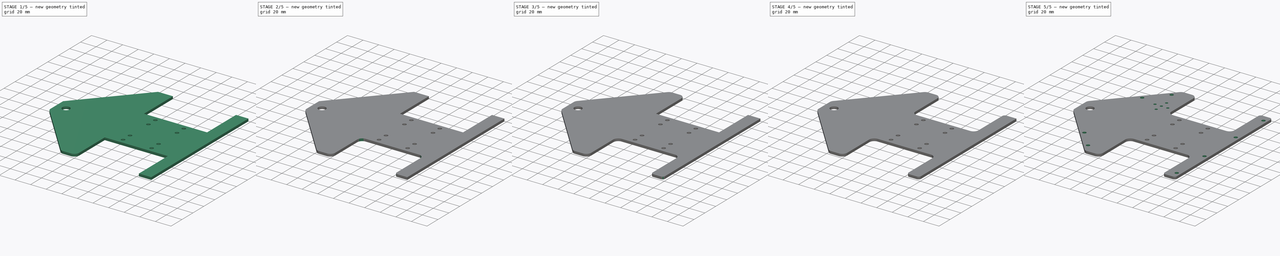
[diagram: build sequence overview — one tinted view per stage of 5, left to right]
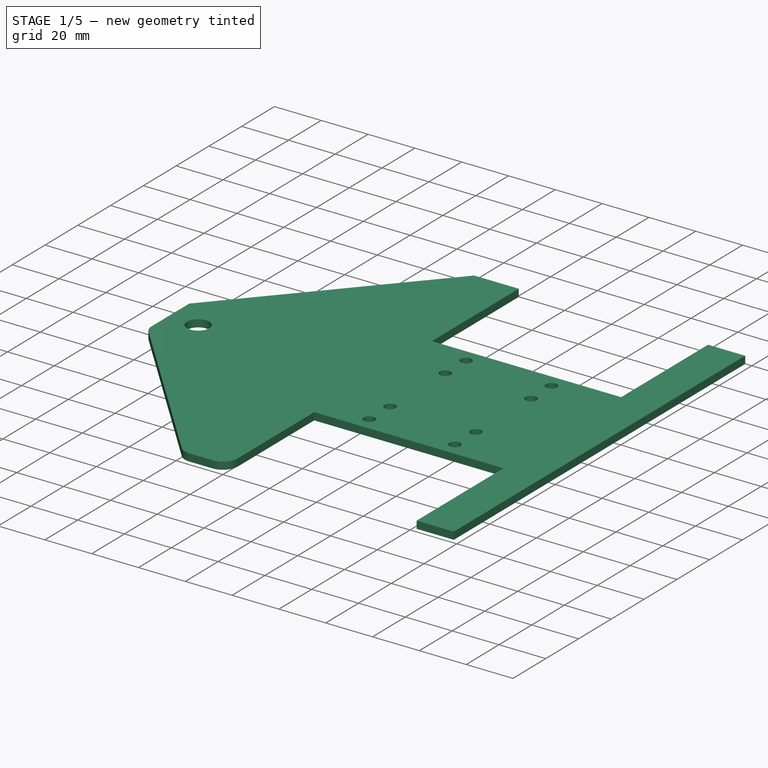
[diagram: stage 1 of 5 — iso view after this stage's code; geometry added in this stage tinted green]
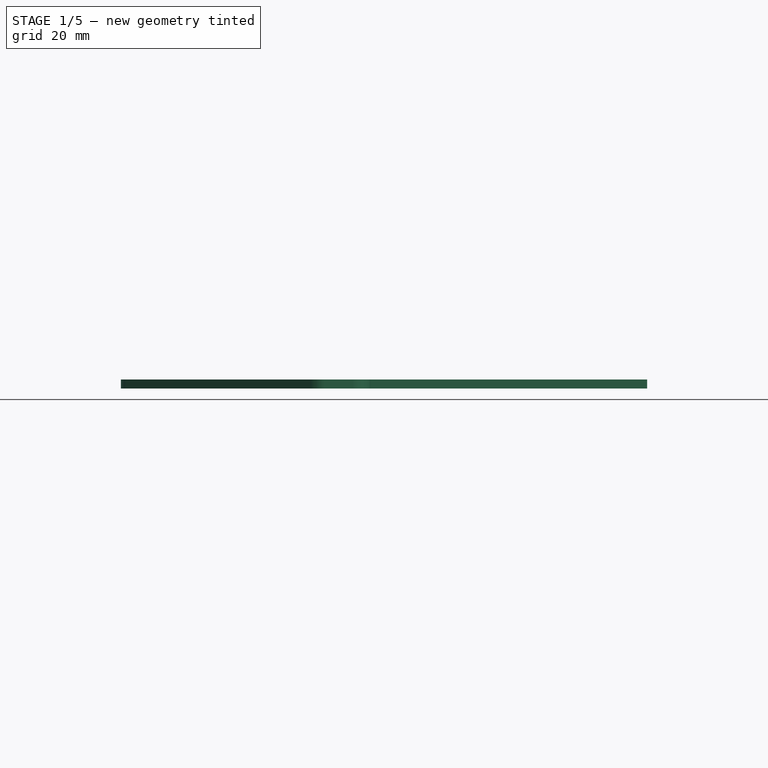
[diagram: stage 1 of 5 — front view after this stage's code; geometry added in this stage tinted green]
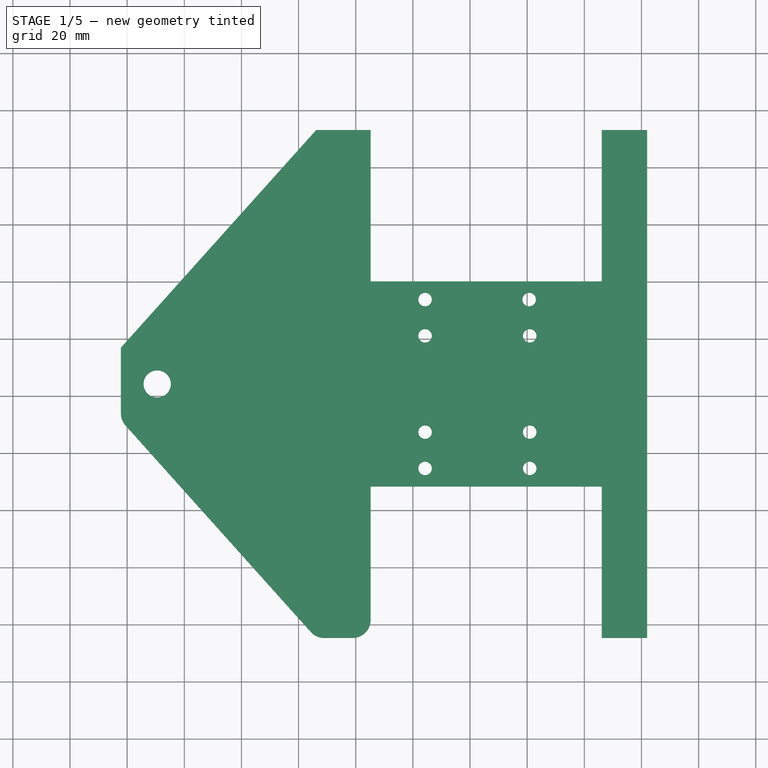
[diagram: stage 1 of 5 — top view after this stage's code; geometry added in this stage tinted green]
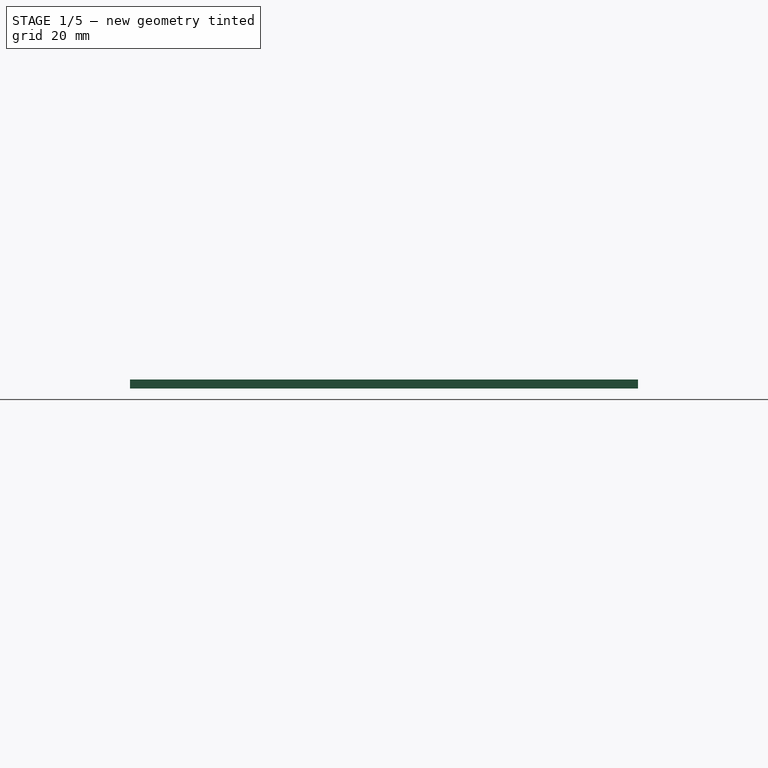
[diagram: stage 1 of 5 — right view after this stage's code; geometry added in this stage tinted green]
FCSTD DOCUMENT  (FreeCAD 0.15R4671 (Git))
Label: plate
License: All rights reserved
LicenseURL: http://en.wikipedia.org/wiki/All_rights_reserved
objects: PartDesign::Fillet×14, Sketcher::SketchObject×4, PartDesign::Pocket×3, App::DocumentObjectGroup×1, PartDesign::Pad×1
note: 26 computed .brp shape members not serialized (recipe doc carries the construction recipe); baked Part::Feature solids carry a one-line shape summary decoded from their .brp

FEATURE [App::DocumentObjectGroup] Group  label="plate"
FEATURE [Sketcher::SketchObject] Sketch  label="main"
  Placement = pos=(-14.3421,44.2432,43.6758) rot=(0,0,1;0rad)
  sketch-geometry (25):
    g0: LineSegment StartX=40.4368 StartY=35.9029 StartZ=0 EndX=-40.4368 EndY=35.9029 EndZ=0
    g1: LineSegment StartX=-40.4368 StartY=35.9029 StartZ=0 EndX=-40.4368 EndY=88.9 EndZ=0
    g2: LineSegment StartX=-40.4368 StartY=88.9 StartZ=0 EndX=-59.4868 EndY=88.9 EndZ=0
    g3: LineSegment StartX=-59.4868 StartY=88.9 StartZ=0 EndX=-127.838 EndY=12.7 EndZ=0
    g4: LineSegment StartX=-127.838 StartY=12.7 StartZ=0 EndX=-127.838 EndY=-12.7 EndZ=0
    g5: LineSegment StartX=-127.838 StartY=-12.7 StartZ=0 EndX=-59.4868 EndY=-88.9 EndZ=0
    g6: LineSegment StartX=-59.4868 StartY=-88.9 StartZ=0 EndX=-40.4368 EndY=-88.9 EndZ=0
    g7: LineSegment StartX=-40.4368 StartY=-88.9 StartZ=0 EndX=-40.4368 EndY=-35.9029 EndZ=0
    g8: LineSegment StartX=-40.4368 StartY=-35.9029 StartZ=0 EndX=40.4368 EndY=-35.9029 EndZ=0
    g9: LineSegment StartX=40.4368 StartY=-35.9029 StartZ=0 EndX=40.4368 EndY=-88.9 EndZ=0
    g10: LineSegment StartX=40.4368 StartY=-88.9 StartZ=0 EndX=56.3118 EndY=-88.9 EndZ=0
    g11: LineSegment StartX=56.3118 StartY=-88.9 StartZ=0 EndX=56.3118 EndY=88.9 EndZ=0
    g12: LineSegment StartX=56.3118 StartY=88.9 StartZ=0 EndX=40.4368 EndY=88.9 EndZ=0
    g13: LineSegment StartX=40.4368 StartY=88.9 StartZ=0 EndX=40.4368 EndY=35.9029 EndZ=0
    g14: Circle CenterX=-21.3868 CenterY=29.5529 CenterZ=0 NormalX=0 NormalY=0 NormalZ=1 Radius=2.3622
    g15: Circle CenterX=-21.3868 CenterY=16.8529 CenterZ=0 NormalX=0 NormalY=0 NormalZ=1 Radius=2.3622
    g16: Circle CenterX=-21.3868 CenterY=-16.8529 CenterZ=0 NormalX=0 NormalY=0 NormalZ=1 Radius=2.3622
    g17: Circle CenterX=-21.3868 CenterY=-29.5529 CenterZ=0 NormalX=0 NormalY=0 NormalZ=1 Radius=2.3622
    g18: Circle CenterX=15.0368 CenterY=29.5529 CenterZ=0 NormalX=0 NormalY=0 NormalZ=1 Radius=2.3622
    g19: Circle CenterX=15.24 CenterY=16.8529 CenterZ=0 NormalX=0 NormalY=0 NormalZ=1 Radius=2.3622
    g20: Circle CenterX=15.24 CenterY=-16.8529 CenterZ=0 NormalX=0 NormalY=0 NormalZ=1 Radius=2.3622
    g21: Circle CenterX=15.24 CenterY=-29.5529 CenterZ=0 NormalX=0 NormalY=0 NormalZ=1 Radius=2.3622
    g22: Circle CenterX=-115.138 CenterY=0 CenterZ=0 NormalX=0 NormalY=0 NormalZ=1 Radius=4.7625
    g23: GeomPoint [constr] X=-127.838 Y=0 Z=0
    g24: LineSegment [constr] StartX=-127.838 StartY=0 StartZ=0 EndX=-115.138 EndY=0 EndZ=0
  constraints (71):
    c: Horizontal(g0)
    c: Coincident(g0,g1)
    c: Vertical(g1)
    c: Coincident(g1,g2)
    c: Horizontal(g2)
    c: Coincident(g2,g3)
    c: Coincident(g3,g4)
    c: Vertical(g4)
    c: Coincident(g4,g5)
    c: Coincident(g5,g6)
    c: Horizontal(g6)
    c: Coincident(g6,g7)
    c: Vertical(g7)
    c: Coincident(g7,g8)
    c: Horizontal(g8)
    c: Coincident(g8,g9)
    c: Vertical(g9)
    c: Coincident(g9,g10)
    c: Horizontal(g10)
    c: Coincident(g10,g11)
    c: Vertical(g11)
    c: Coincident(g11,g12)
    c: Horizontal(g12)
    c: Coincident(g12,g13)
    c: Coincident(g13,g0)
    c: Vertical(g13)
    c: Equal(g13,g9)
    c: Equal(g1,g7)
    c: Equal(g2,g6)
    c: Equal(g3,g5)
    c: Equal(g8,g0)
    c: Equal(g13,g1)
    c: DistanceX(g6) = 19.05
    c: DistanceY(g11) = 177.8
    c: DistanceX(g9,g10) = 15.875
    c: DistanceX(g4,g10) = 184.15
    c: Equal(g20,g19)
    c: Equal(g19,g18)
    c: Equal(g18,g21)
    c: Equal(g21,g17)
    c: Equal(g17,g16)
    c: Equal(g16,g15)
    c: Equal(g15,g14)
    c: Radius(g14) = 2.3622
    c: DistanceY(g4,g3) = 25.4
    c: Symmetric(g3,g4,g23)
    c: Horizontal(g24)
    c: DistanceX(g24) = 12.7
    c: Coincident(g24,g23)
    c: Radius(g22) = 4.7625
    c: Coincident(g22,g24)
    c: DistanceX(g18,g0) = 25.4
    c: DistanceY(g18,g19) = -12.7
    c: DistanceY(g21,g20) = 12.7
    c: DistanceY(g21,g8) = -6.35
    c: DistanceX(g14,g18) = 36.4236
    c: DistanceX(g15,g19) = 36.6268
    c: DistanceX(g16,g20) = 36.6268
    c: DistanceX(g17,g21) = 36.6268
    c: DistanceX(g14,g0) = -19.05
    c: DistanceX(g17,g7) = -19.05
    c: DistanceY(g17,g7) = -6.35
    c: DistanceY(g14,g0) = 6.35
    c: DistanceX(g15,g0) = -19.05
    c: DistanceX(g16,g0) = -19.05
    c: DistanceX(g17,g0) = -19.05
    c: DistanceY(g0,g7) = -71.8058
    c: DistanceY(g15,g14) = 12.7
    c: Symmetric(g0,g7,g-1)
    c: DistanceY(g16,g17) = -12.7
    c: DistanceY(g18,g0) = 6.35
FEATURE [PartDesign::Pad] Pad
  Length = 3.175
  Length2 = 100
  Placement = pos=(-14.3421,44.2432,43.6758) rot=(0,0,1;0rad)
  Sketch = -> Sketch
  Type = 0
FEATURE [PartDesign::Fillet] Fillet
  Base = -> Pad [Edge14]
  Placement = pos=(-14.3421,44.2432,43.6758) rot=(0,0,1;0rad)
  Radius = 6.35
FEATURE [PartDesign::Fillet] Fillet001
  Base = -> Fillet [Edge53]
  Placement = pos=(-14.3421,44.2432,43.6758) rot=(0,0,1;0rad)
  Radius = 6.35
FEATURE [PartDesign::Fillet] Fillet002
  Base = -> Fillet001 [Edge33]
  Placement = pos=(-14.3421,44.2432,43.6758) rot=(0,0,1;0rad)
  Radius = 6.35
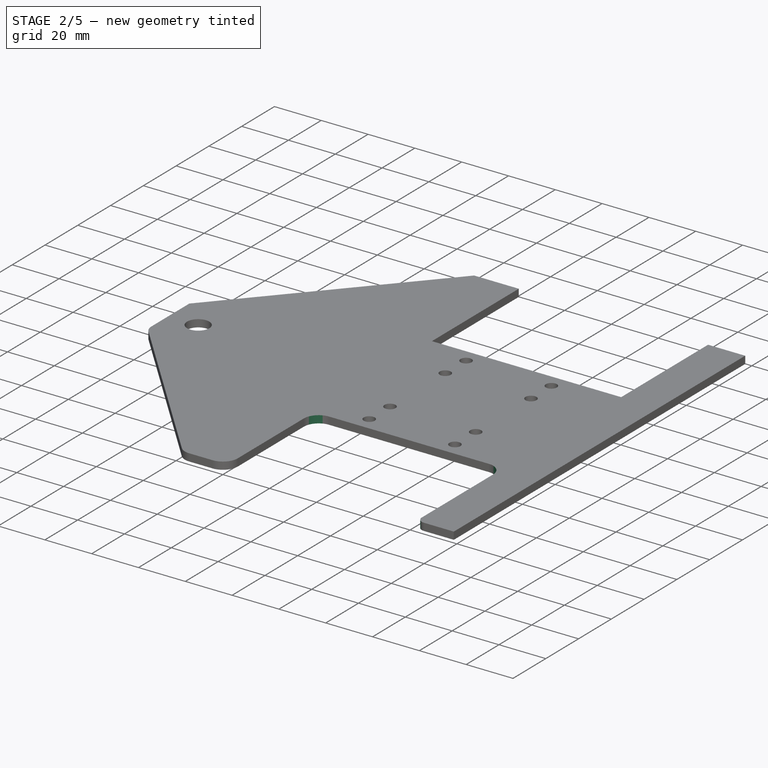
[diagram: stage 2 of 5 — iso view after this stage's code; geometry added in this stage tinted green]
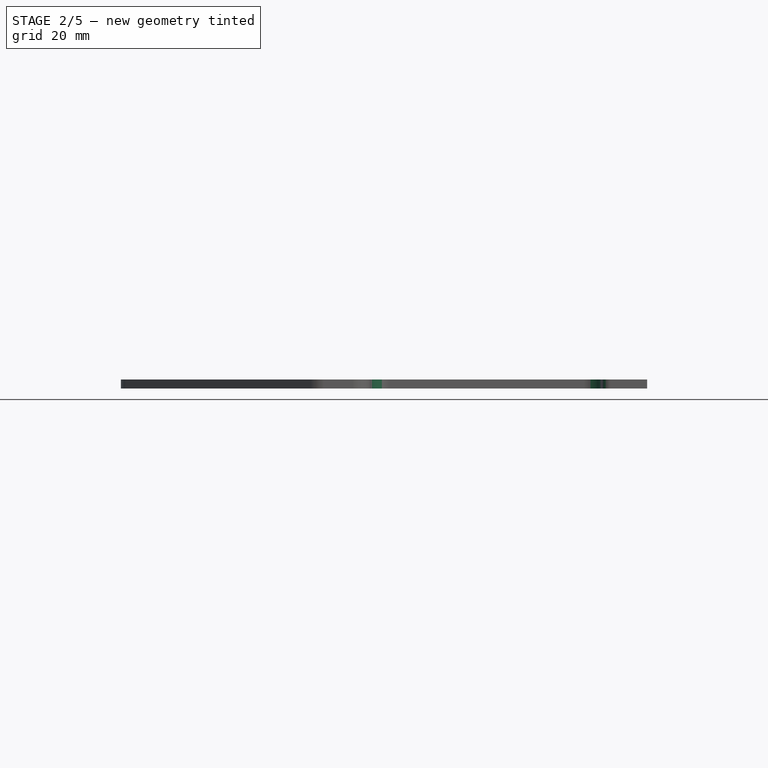
[diagram: stage 2 of 5 — front view after this stage's code; geometry added in this stage tinted green]
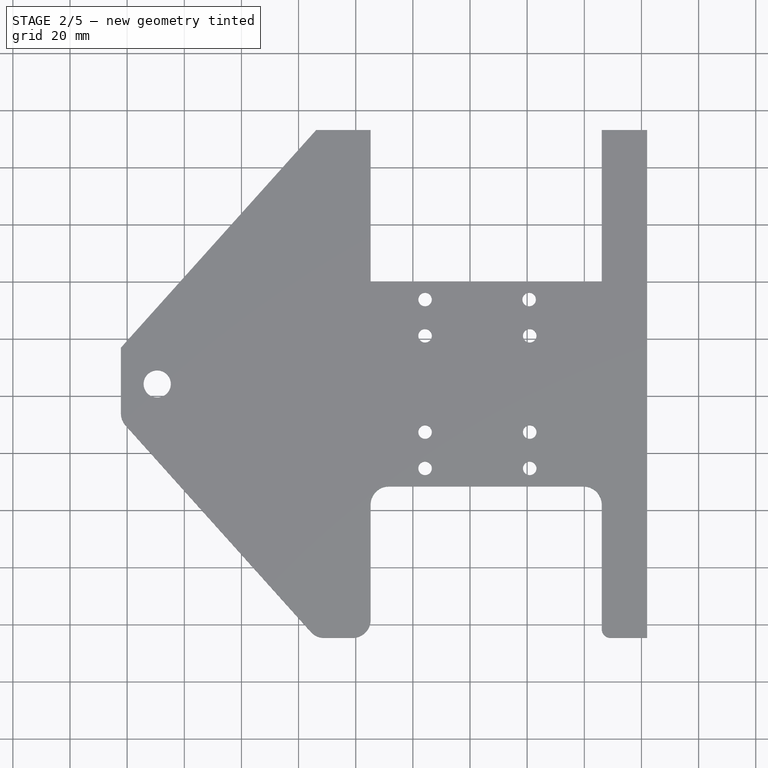
[diagram: stage 2 of 5 — top view after this stage's code; geometry added in this stage tinted green]
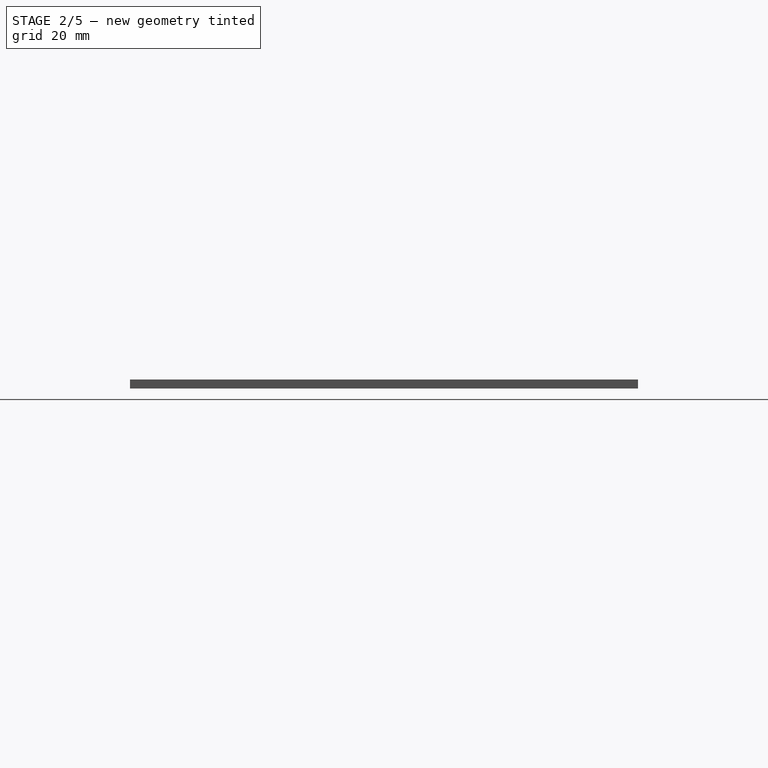
[diagram: stage 2 of 5 — right view after this stage's code; geometry added in this stage tinted green]
FEATURE [PartDesign::Fillet] Fillet003
  Base = -> Fillet002 [Edge34]
  Placement = pos=(-14.3421,44.2432,43.6758) rot=(0,0,1;0rad)
  Radius = 6.35
FEATURE [PartDesign::Fillet] Fillet004
  Base = -> Fillet003 [Edge35]
  Placement = pos=(-14.3421,44.2432,43.6758) rot=(0,0,1;0rad)
  Radius = 6.35
FEATURE [PartDesign::Fillet] Fillet005
  Base = -> Fillet004 [Edge36]
  Placement = pos=(-14.3421,44.2432,43.6758) rot=(0,0,1;0rad)
  Radius = 3.175
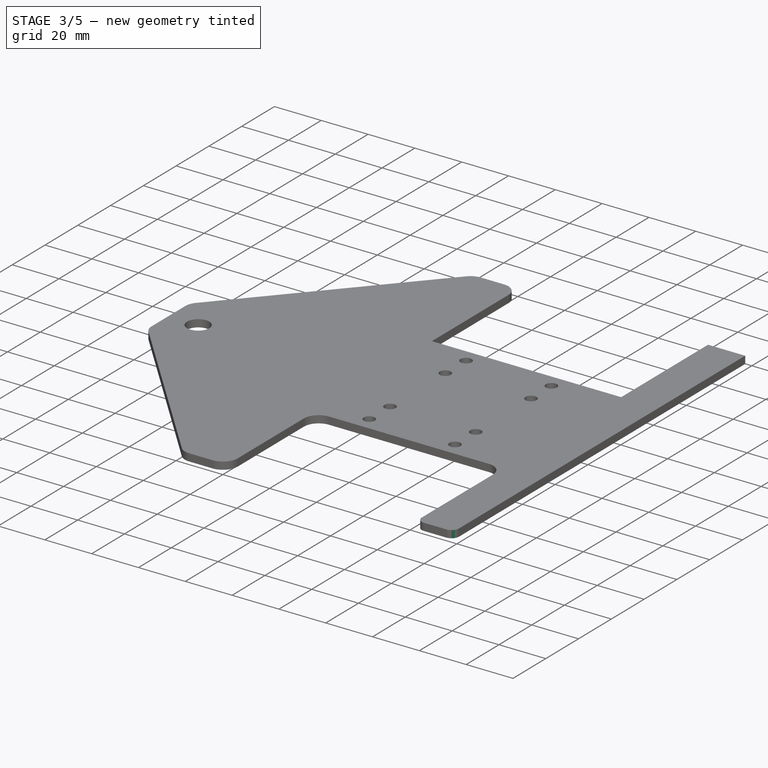
[diagram: stage 3 of 5 — iso view after this stage's code; geometry added in this stage tinted green]
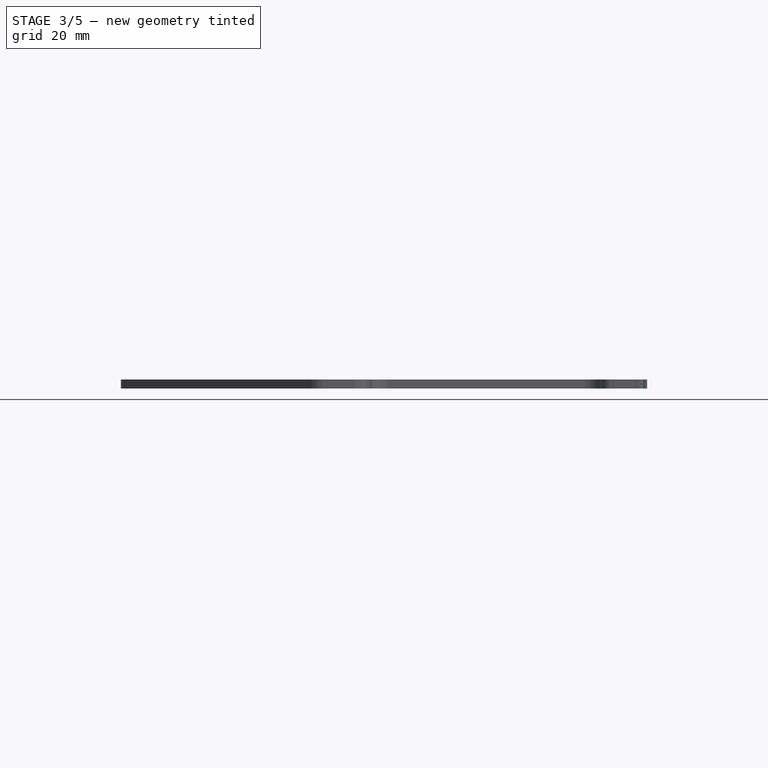
[diagram: stage 3 of 5 — front view after this stage's code; geometry added in this stage tinted green]
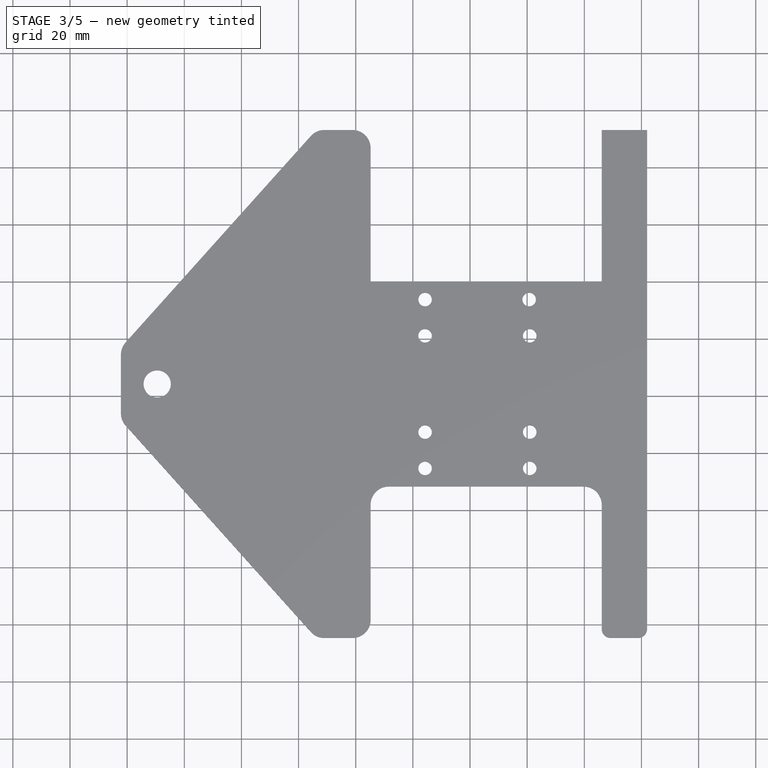
[diagram: stage 3 of 5 — top view after this stage's code; geometry added in this stage tinted green]
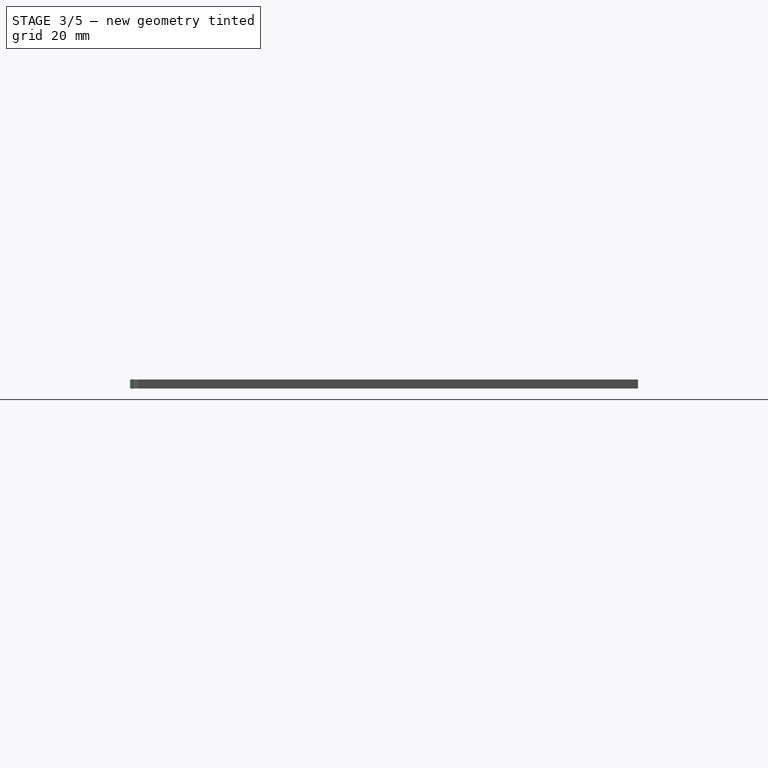
[diagram: stage 3 of 5 — right view after this stage's code; geometry added in this stage tinted green]
FEATURE [PartDesign::Fillet] Fillet006
  Base = -> Fillet005 [Edge37]
  Placement = pos=(-14.3421,44.2432,43.6758) rot=(0,0,1;0rad)
  Radius = 3.175
FEATURE [PartDesign::Fillet] Fillet007
  Base = -> Fillet006 [Edge62]
  Placement = pos=(-14.3421,44.2432,43.6758) rot=(0,0,1;0rad)
  Radius = 6.35
FEATURE [PartDesign::Fillet] Fillet008
  Base = -> Fillet007 [Edge33]
  Placement = pos=(-14.3421,44.2432,43.6758) rot=(0,0,1;0rad)
  Radius = 6.35
FEATURE [PartDesign::Fillet] Fillet009
  Base = -> Fillet008 [Edge40]
  Placement = pos=(-14.3421,44.2432,43.6758) rot=(0,0,1;0rad)
  Radius = 6.35
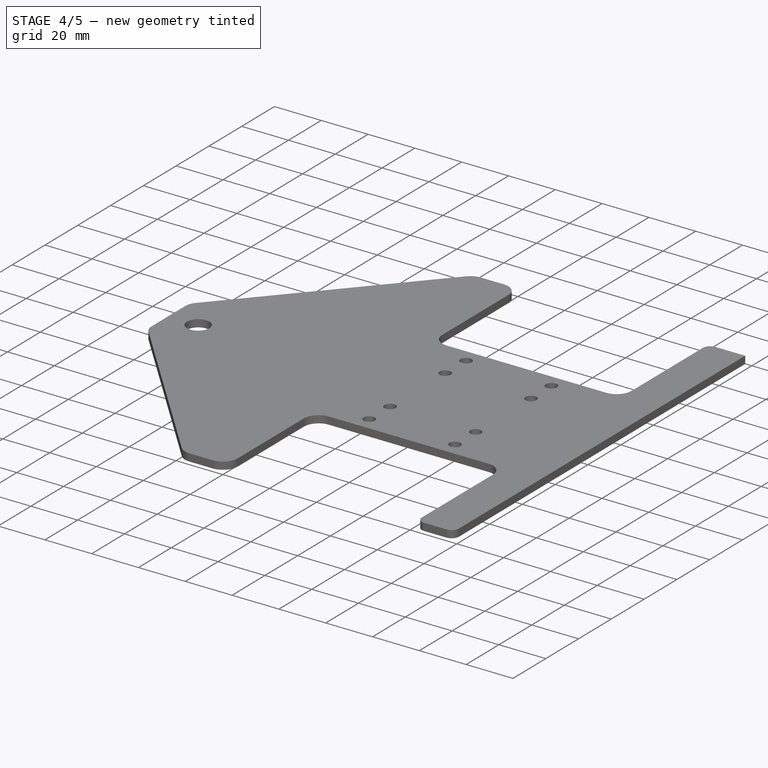
[diagram: stage 4 of 5 — iso view after this stage's code; geometry added in this stage tinted green]
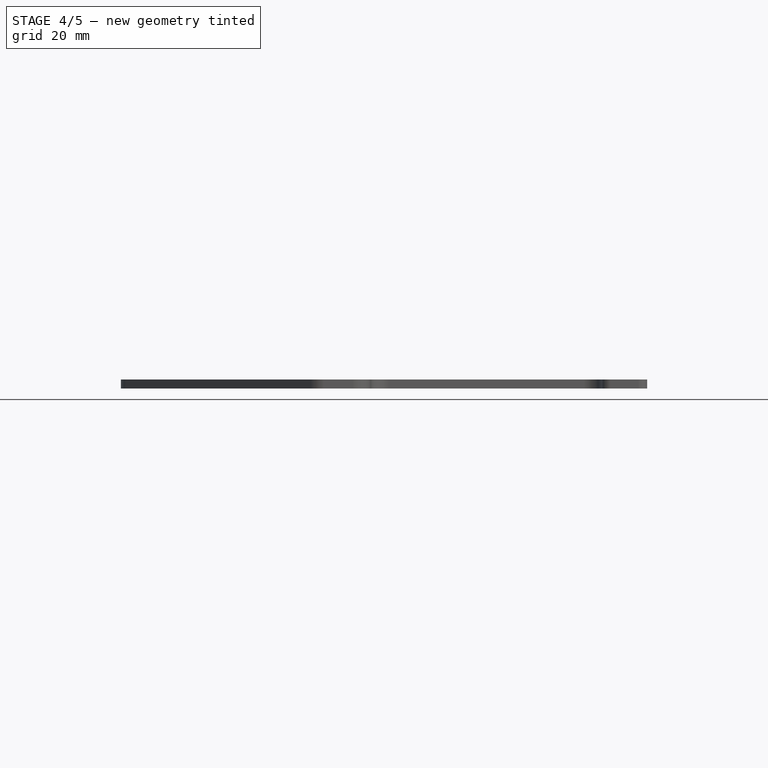
[diagram: stage 4 of 5 — front view after this stage's code; geometry added in this stage tinted green]
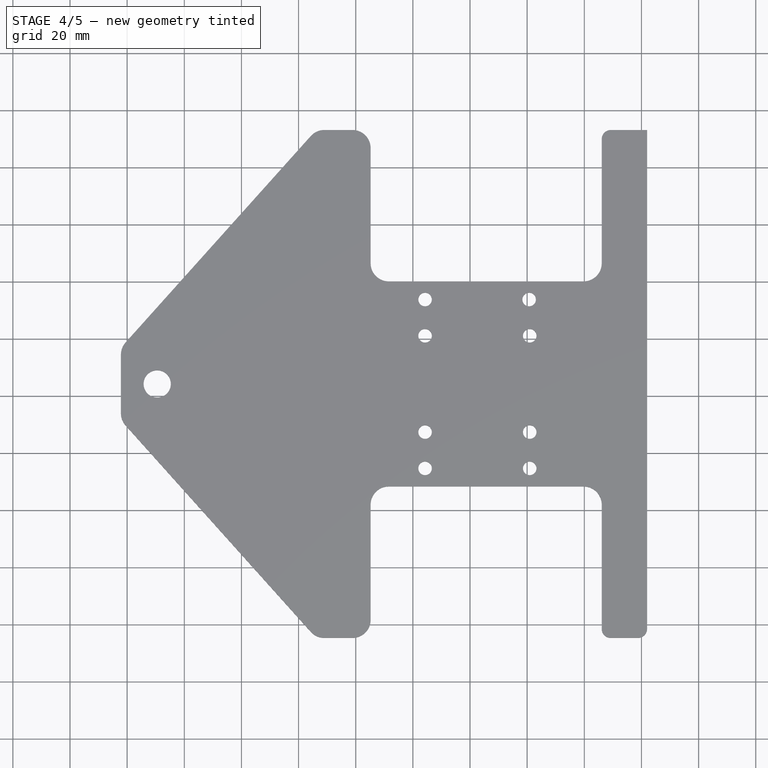
[diagram: stage 4 of 5 — top view after this stage's code; geometry added in this stage tinted green]
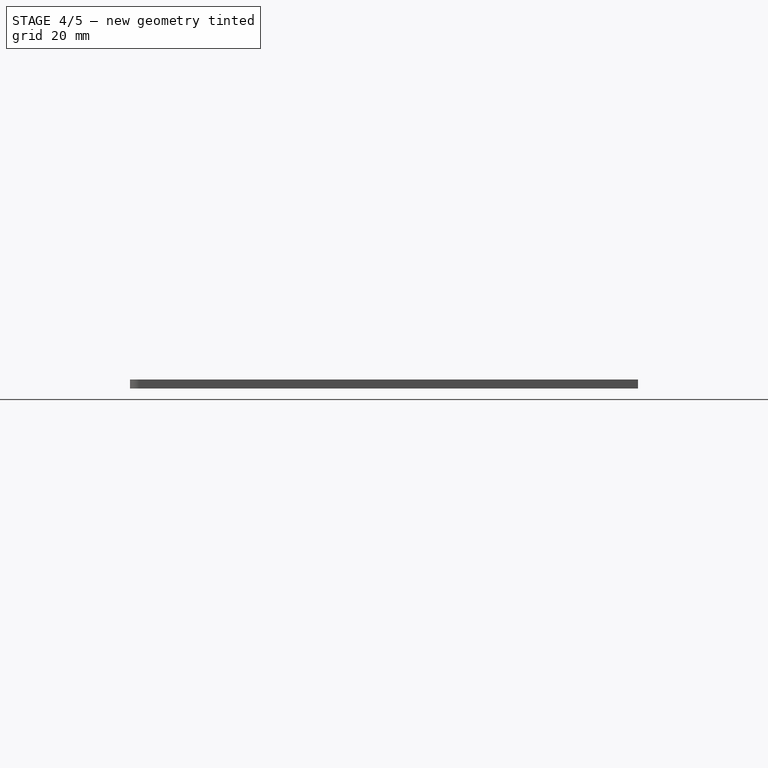
[diagram: stage 4 of 5 — right view after this stage's code; geometry added in this stage tinted green]
FEATURE [PartDesign::Fillet] Fillet010
  Base = -> Fillet009 [Edge45]
  Placement = pos=(-14.3421,44.2432,43.6758) rot=(0,0,1;0rad)
  Radius = 6.35
FEATURE [PartDesign::Fillet] Fillet011
  Base = -> Fillet010 [Edge36]
  Placement = pos=(-14.3421,44.2432,43.6758) rot=(0,0,1;0rad)
  Radius = 6.35
FEATURE [PartDesign::Fillet] Fillet012
  Base = -> Fillet011 [Edge45]
  Placement = pos=(-14.3421,44.2432,43.6758) rot=(0,0,1;0rad)
  Radius = 3.175
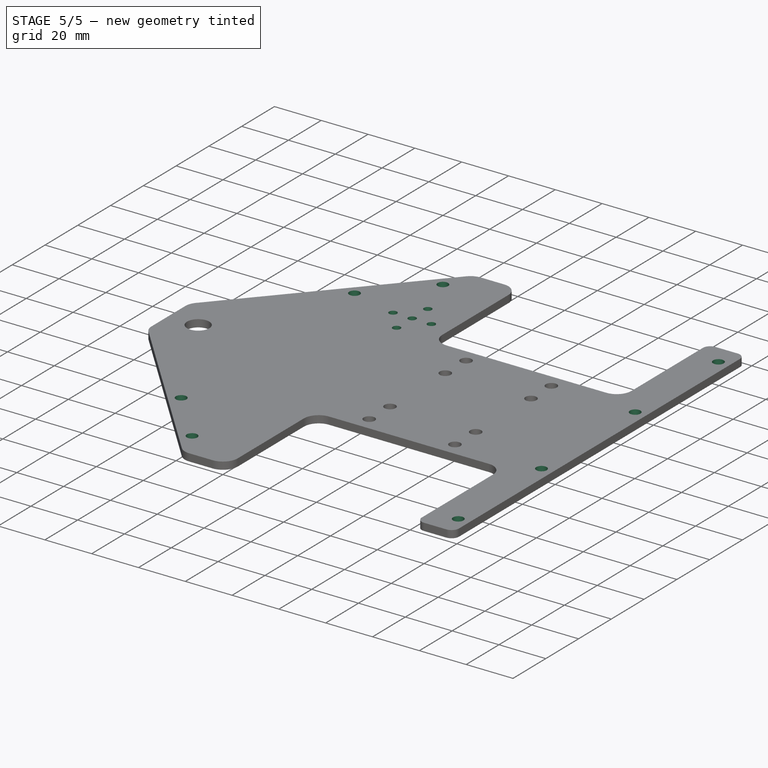
[diagram: stage 5 of 5 — iso view after this stage's code; geometry added in this stage tinted green]
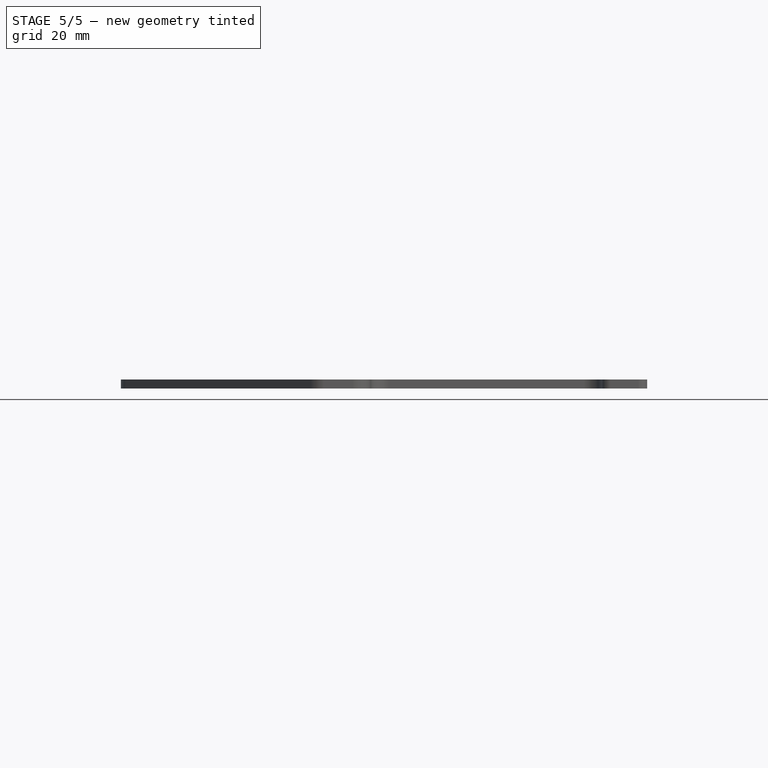
[diagram: stage 5 of 5 — front view after this stage's code; geometry added in this stage tinted green]
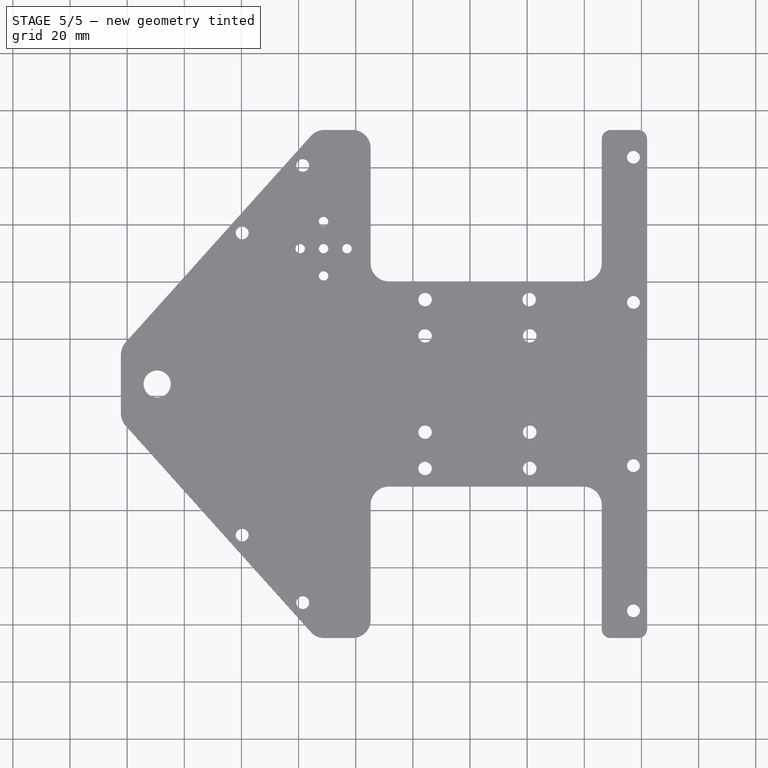
[diagram: stage 5 of 5 — top view after this stage's code; geometry added in this stage tinted green]
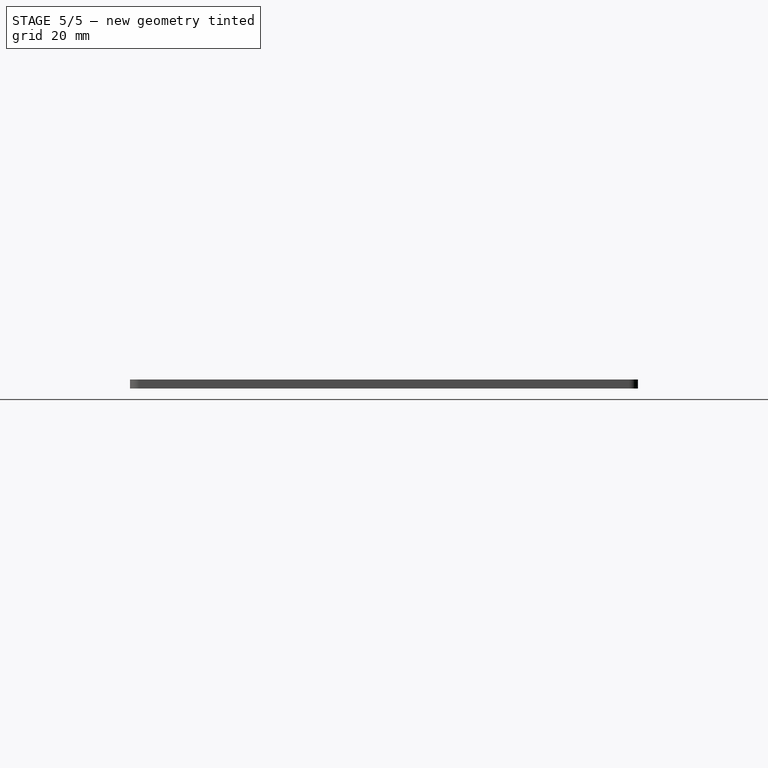
[diagram: stage 5 of 5 — right view after this stage's code; geometry added in this stage tinted green]
FEATURE [PartDesign::Fillet] Fillet013
  Base = -> Fillet012 [Edge44]
  Placement = pos=(-14.3421,44.2432,43.6758) rot=(0,0,1;0rad)
  Radius = 3.175
FEATURE [Sketcher::SketchObject] Sketch001  label="motor_holes"
  ExternalGeometry = -> [Fillet013]
  Placement = pos=(-14.3421,44.2432,46.8508) rot=(0,0,1;0rad)
  Support = -> Fillet013 [Face39]
  sketch-geometry (10):
    g0: LineSegment [constr] StartX=-115.138 StartY=0.235254 StartZ=0 EndX=-56.9067 EndY=47.3902 EndZ=0
    g1: Circle CenterX=-56.9067 CenterY=47.3902 CenterZ=0 NormalX=0 NormalY=0 NormalZ=1 Radius=1.651
    g2: LineSegment [constr] StartX=-56.9067 StartY=47.3902 StartZ=0 EndX=-56.9067 EndY=56.9152 EndZ=0
    g3: LineSegment [constr] StartX=-56.9067 StartY=47.3902 StartZ=0 EndX=-48.7152 EndY=47.3902 EndZ=0
    g4: LineSegment [constr] StartX=-56.9067 StartY=47.3902 StartZ=0 EndX=-65.0982 EndY=47.3902 EndZ=0
    g5: LineSegment [constr] StartX=-56.9067 StartY=47.3902 StartZ=0 EndX=-56.9067 EndY=37.8652 EndZ=0
    g6: Circle CenterX=-65.0982 CenterY=47.3902 CenterZ=0 NormalX=0 NormalY=0 NormalZ=1 Radius=1.651
    g7: Circle CenterX=-56.9067 CenterY=56.9152 CenterZ=0 NormalX=0 NormalY=0 NormalZ=1 Radius=1.651
    g8: Circle CenterX=-48.7152 CenterY=47.3902 CenterZ=0 NormalX=0 NormalY=0 NormalZ=1 Radius=1.651
    g9: Circle CenterX=-56.9067 CenterY=37.8652 CenterZ=0 NormalX=0 NormalY=0 NormalZ=1 Radius=1.651
  constraints (26):
    c: Angle(g0) = 0.680678
    c: Distance(g0) = 74.93
    c: Radius(g1) = 1.651
    c: Coincident(g1,g0)
    c: DistanceY(g2) = 9.525
    c: DistanceX(g3) = 8.1915
    c: Horizontal(g4)
    c: DistanceX(g4) = -8.1915
    c: DistanceY(g5) = -9.525
    c: Vertical(g5)
    c: Coincident(g0,g5)
    c: Horizontal(g3)
    c: Coincident(g3,g0)
    c: Coincident(g2,g0)
    c: Vertical(g2)
    c: Coincident(g4,g0)
    c: Radius(g6) = 1.651
    c: Equal(g9,g8)
    c: Equal(g8,g7)
    c: Equal(g7,g6)
    c: Coincident(g6,g4)
    c: Coincident(g7,g2)
    c: Coincident(g8,g3)
    c: Coincident(g9,g5)
    c: DistanceX(g0,g-3) = -12.7
    c: DistanceY(g0,g-3) = 10.0341
FEATURE [PartDesign::Pocket] Pocket
  Length = 4.99999
  Placement = pos=(-14.3421,44.2432,43.6758) rot=(0,0,1;0rad)
  Sketch = -> Sketch001
  Type = 1
FEATURE [Sketcher::SketchObject] Sketch002
  ExternalGeometry = -> [Pocket]
  Placement = pos=(-14.3421,44.2432,46.8508) rot=(0,0,1;0rad)
  Support = -> Pocket [Face44]
  sketch-geometry (10):
    g0: LineSegment [constr] StartX=-85.3947 StartY=52.8848 StartZ=0 EndX=-64.1943 EndY=76.5196 EndZ=0
    g1: LineSegment [constr] StartX=-85.3947 StartY=-52.8848 StartZ=0 EndX=-64.1943 EndY=-76.5196 EndZ=0
    g2: LineSegment [constr] StartX=-61.3794 StartY=-86.7901 StartZ=0 EndX=-57.8342 EndY=-83.61 EndZ=0
    g3: LineSegment [constr] StartX=-57.8342 StartY=-83.61 StartZ=0 EndX=-64.1943 EndY=-76.5196 EndZ=0
    g4: Circle CenterX=-85.3947 CenterY=-52.8848 CenterZ=0 NormalX=0 NormalY=0 NormalZ=1 Radius=2.2479
    g5: Circle CenterX=-64.1943 CenterY=-76.5196 CenterZ=0 NormalX=0 NormalY=0 NormalZ=1 Radius=2.2479
    g6: LineSegment [constr] StartX=-61.3794 StartY=86.7901 StartZ=0 EndX=-57.8342 EndY=83.61 EndZ=0
    g7: LineSegment [constr] StartX=-57.8342 StartY=83.61 StartZ=0 EndX=-64.1943 EndY=76.5196 EndZ=0
    g8: Circle CenterX=-64.1943 CenterY=76.5196 CenterZ=0 NormalX=0 NormalY=0 NormalZ=1 Radius=2.2479
    g9: Circle CenterX=-85.3947 CenterY=52.8848 CenterZ=0 NormalX=0 NormalY=0 NormalZ=1 Radius=2.2479
  constraints (26):
    c: Parallel(g-4,g0)
    c: Distance(g0) = 31.75
    c: Parallel(g1,g-3)
    c: Distance(g1) = 31.75
    c: Perpendicular(g-3,g2)
    c: Coincident(g2,g-3)
    c: Distance(g2) = 4.7625
    c: Parallel(g3,g-3)
    c: Distance(g3) = 9.525
    c: Coincident(g3,g2)
    c: Coincident(g1,g3)
    c: Radius(g5) = 2.2479
    c: Equal(g5,g4)
    c: Coincident(g5,g1)
    c: Coincident(g4,g1)
    c: Perpendicular(g-4,g6)
    c: Distance(g6) = 4.7625
    c: Coincident(g6,g-4)
    c: Parallel(g7,g-4)
    c: Distance(g7) = 9.525
    c: Coincident(g7,g6)
    c: Coincident(g0,g7)
    c: Radius(g9) = 2.2479
    c: Equal(g9,g8)
    c: Coincident(g8,g0)
    c: Coincident(g9,g0)
FEATURE [PartDesign::Pocket] Pocket001
  Length = 4.99999
  Placement = pos=(-14.3421,44.2432,43.6758) rot=(0,0,1;0rad)
  Sketch = -> Sketch002
  Type = 1
FEATURE [Sketcher::SketchObject] Sketch003
  ExternalGeometry = -> [Pocket001]
  Placement = pos=(-14.3421,44.2432,46.8508) rot=(0,0,1;0rad)
  Support = -> Pocket001 [Face48]
  sketch-geometry (6):
    g0: Circle CenterX=51.5493 CenterY=-79.375 CenterZ=0 NormalX=0 NormalY=0 NormalZ=1 Radius=2.2479
    g1: Circle CenterX=51.5493 CenterY=-28.575 CenterZ=0 NormalX=0 NormalY=0 NormalZ=1 Radius=2.2479
    g2: Circle CenterX=51.5493 CenterY=79.375 CenterZ=0 NormalX=0 NormalY=0 NormalZ=1 Radius=2.2479
    g3: LineSegment [constr] StartX=51.5493 StartY=-28.575 StartZ=0 EndX=51.5493 EndY=-79.375 EndZ=0
    g4: LineSegment [constr] StartX=51.5493 StartY=79.375 StartZ=0 EndX=51.5493 EndY=28.575 EndZ=0
    g5: Circle CenterX=51.5493 CenterY=28.575 CenterZ=0 NormalX=0 NormalY=0 NormalZ=1 Radius=2.2479
  constraints (16):
    c: Radius(g1) = 2.2479
    c: Equal(g1,g2)
    c: Equal(g1,g0)
    c: Vertical(g3)
    c: DistanceY(g3) = -50.8
    c: DistanceX(g-6,g0) = -4.7625
    c: DistanceY(g0,g-6) = -9.525
    c: Coincident(g3,g0)
    c: Coincident(g1,g3)
    c: DistanceX(g-4,g2) = -4.7625
    c: DistanceY(g2,g-5) = 9.525
    c: Vertical(g4)
    c: DistanceY(g4) = -50.8
    c: Coincident(g4,g2)
    c: Equal(g5,g2)
    c: Coincident(g5,g4)
FEATURE [PartDesign::Pocket] Pocket002
  Length = 4.99999
  Placement = pos=(-14.3421,44.2432,43.6758) rot=(0,0,1;0rad)
  Sketch = -> Sketch003
  Type = 0
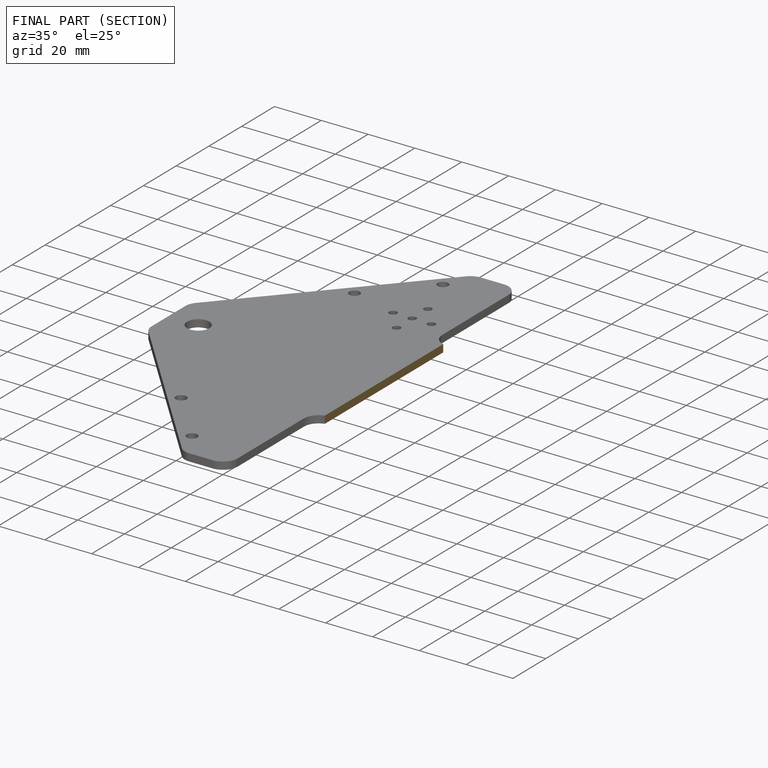
[diagram: finished part — half-section view (interior)]
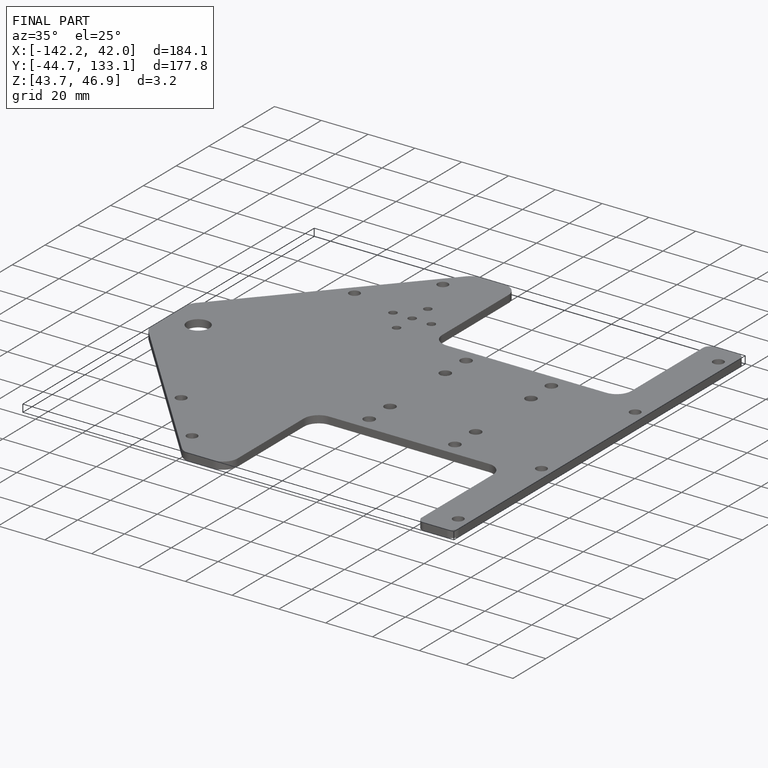
[diagram: finished part — iso view with bounding-box wireframe]
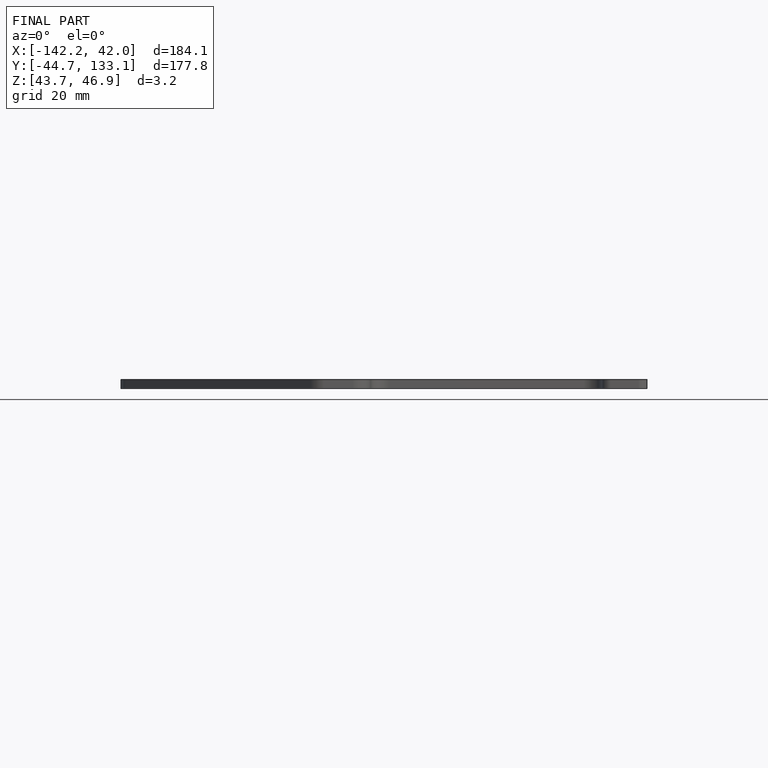
[diagram: finished part — front view with bounding-box wireframe]
